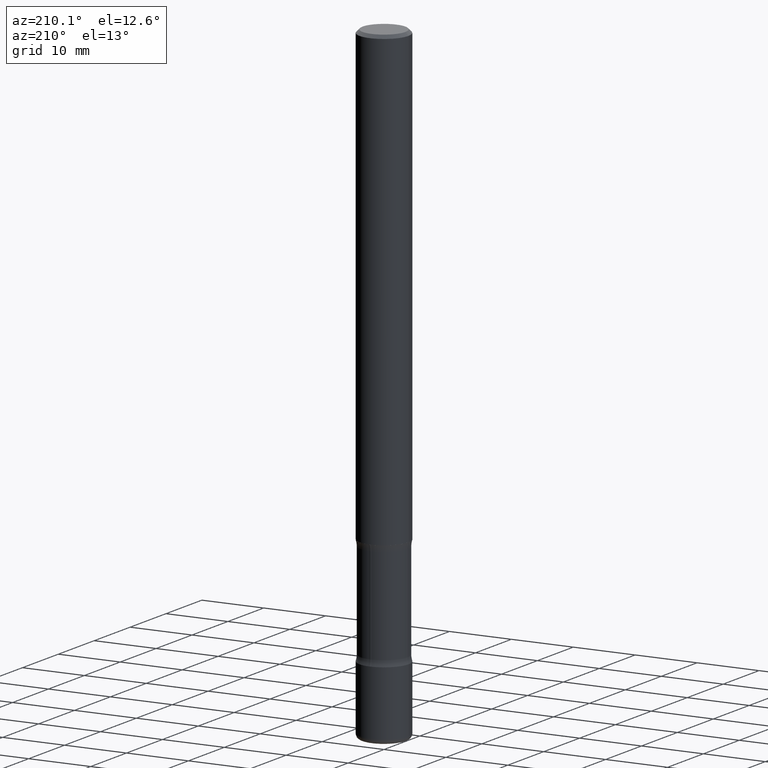
[diagram: clean part render]
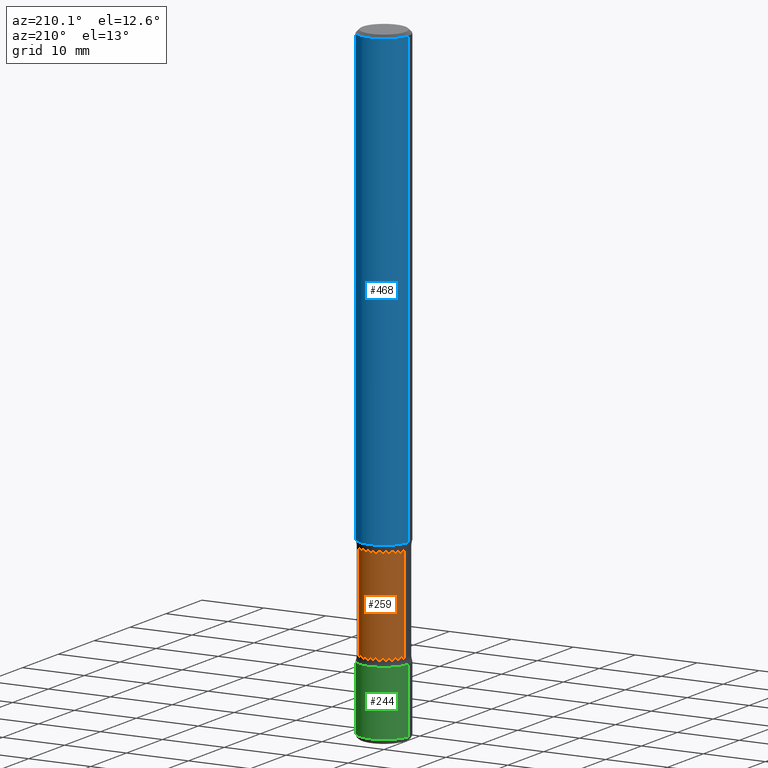
[diagram: same view with three faces highlighted in distinct colors, each labeled with its STEP entity id]
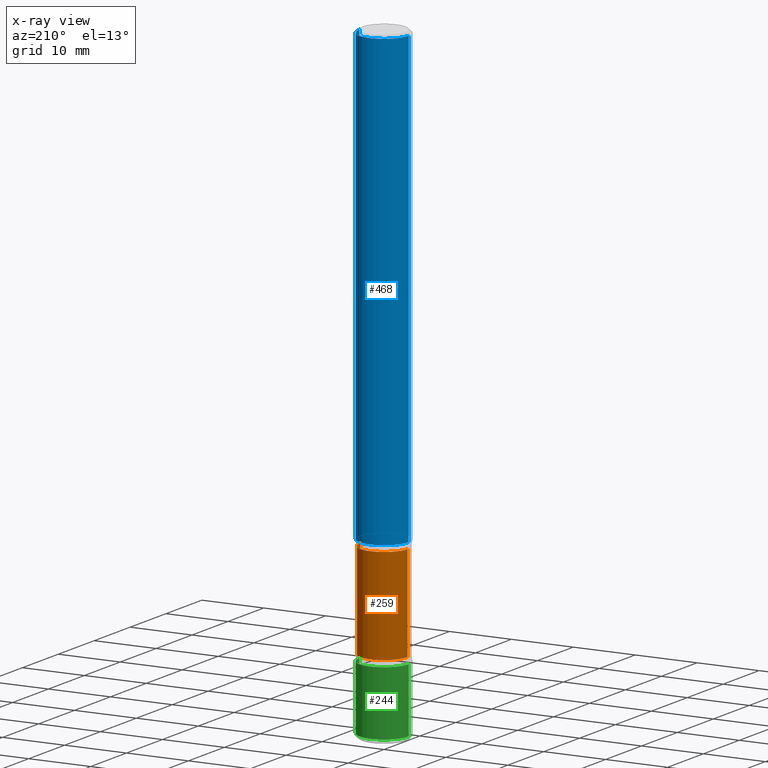
[diagram: x-ray of the same camera — body ghosted, the three highlighted faces saturated]
A machine part, auxiliary view with three faces highlighted in distinct colors.
The next image is the same camera in x-ray (body ghosted, the three faces saturated) — at least one of them is partly hidden behind the body in this view.
Their STEP definitions:

[orange] entity #259 — the highlighted cylindrical surface (edge-blend (fillet) strip) has radius 3.81 mm, axis along (-0, 0, 1).
#2 = VECTOR ( 'NONE', #72, 39.37007874015748143 ) ;
#15 = EDGE_CURVE ( 'NONE', #85, #560, #595, .T. ) ;
#27 = CARTESIAN_POINT ( 'NONE',  ( 7.126172491530842788E-29, -1.017428568650229871E-14, -2.914031237489990378 ) ) ;
#29 = EDGE_LOOP ( 'NONE', ( #352, #201, #189, #82 ) ) ;
#72 = DIRECTION ( 'NONE',  ( -2.445468806185136877E-29, 3.491481338843145188E-15, 1.000000000000000000 ) ) ;
#82 = ORIENTED_EDGE ( 'NONE', *, *, #425, .F. ) ;
#85 = VERTEX_POINT ( 'NONE', #504 ) ;
#136 = VECTOR ( 'NONE', #156, 39.37007874015748143 ) ;
#150 = CARTESIAN_POINT ( 'NONE',  ( 0.1499999999999999667, -1.334956983395339036E-14, -3.523468762510010066 ) ) ;
#156 = DIRECTION ( 'NONE',  ( -2.445468806185136877E-29, 3.491481338843145188E-15, 1.000000000000000000 ) ) ;
#181 = DIRECTION ( 'NONE',  ( 1.000000000000000000, -6.982962677686270655E-15, 0.000000000000000000 ) ) ;
#189 = ORIENTED_EDGE ( 'NONE', *, *, #15, .F. ) ;
#194 = EDGE_CURVE ( 'NONE', #447, #431, #607, .T. ) ;
#201 = ORIENTED_EDGE ( 'NONE', *, *, #796, .T. ) ;
#204 = DIRECTION ( 'NONE',  ( -2.445468806185136597E-29, 3.491481338843145583E-15, 1.000000000000000000 ) ) ;
#207 = DIRECTION ( 'NONE',  ( -2.445468806185136597E-29, 3.491481338843145583E-15, 1.000000000000000000 ) ) ;
#259 = ADVANCED_FACE ( 'NONE', ( #581 ), #467, .T. ) ;
#352 = ORIENTED_EDGE ( 'NONE', *, *, #194, .T. ) ;
#359 = AXIS2_PLACEMENT_3D ( 'NONE', #27, #207, #399 ) ;
#373 = DIRECTION ( 'NONE',  ( -2.445468806185136597E-29, 3.491481338843145583E-15, 1.000000000000000000 ) ) ;
#399 = DIRECTION ( 'NONE',  ( 1.000000000000000000, -6.982962677686272233E-15, 0.000000000000000000 ) ) ;
#425 = EDGE_CURVE ( 'NONE', #447, #85, #466, .T. ) ;
#431 = VERTEX_POINT ( 'NONE', #660 ) ;
#447 = VERTEX_POINT ( 'NONE', #150 ) ;
#466 = LINE ( 'NONE', #770, #136 ) ;
#467 = CYLINDRICAL_SURFACE ( 'NONE', #762, 0.1499999999999999389 ) ;
#504 = CARTESIAN_POINT ( 'NONE',  ( 0.1499999999999999112, -1.122173008815524030E-14, -2.914031237489990378 ) ) ;
#517 = AXIS2_PLACEMENT_3D ( 'NONE', #563, #373, #746 ) ;
#560 = VERTEX_POINT ( 'NONE', #601 ) ;
#563 = CARTESIAN_POINT ( 'NONE',  ( 8.616532948285975175E-29, -1.230212543230045036E-14, -3.523468762510010066 ) ) ;
#581 = FACE_OUTER_BOUND ( 'NONE', #29, .T. ) ;
#595 = CIRCLE ( 'NONE', #359, 0.1499999999999999112 ) ;
#601 = CARTESIAN_POINT ( 'NONE',  ( -0.1499999999999999112, -9.018128703705517816E-15, -2.914031237489990378 ) ) ;
#607 = CIRCLE ( 'NONE', #517, 0.1499999999999999667 ) ;
#660 = CARTESIAN_POINT ( 'NONE',  ( -0.1499999999999999667, -1.128224528683192507E-14, -3.523468762510010066 ) ) ;
#705 = LINE ( 'NONE', #802, #2 ) ;
#746 = DIRECTION ( 'NONE',  ( 1.000000000000000000, -6.982962677686269866E-15, 0.000000000000000000 ) ) ;
#762 = AXIS2_PLACEMENT_3D ( 'NONE', #766, #204, #181 ) ;
#766 = CARTESIAN_POINT ( 'NONE',  ( 7.030722817782267716E-29, -1.003800884917404311E-14, -2.875000000000000000 ) ) ;
#770 = CARTESIAN_POINT ( 'NONE',  ( 0.1499999999999999389, -1.108545325082698469E-14, -2.875000000000000000 ) ) ;
#796 = EDGE_CURVE ( 'NONE', #431, #560, #705, .T. ) ;
#802 = CARTESIAN_POINT ( 'NONE',  ( -0.1499999999999999389, -8.972194745533893459E-15, -2.875000000000000000 ) ) ;

[blue] entity #468 — the highlighted cylindrical surface (edge-blend (fillet) strip) has radius 3.9687 mm, axis along (-0, 0, 1).
#20 = CARTESIAN_POINT ( 'NONE',  ( -0.1562500000000000000, -3.943696213350291140E-15, -2.875000000000000000 ) ) ;
#53 = CARTESIAN_POINT ( 'NONE',  ( -0.1562499999999997780, 1.021258291611614495E-15, -0.02000000000000003511 ) ) ;
#71 = LINE ( 'NONE', #696, #302 ) ;
#80 = DIRECTION ( 'NONE',  ( -2.445468806185136597E-29, 3.491481338843145583E-15, 1.000000000000000000 ) ) ;
#89 = EDGE_CURVE ( 'NONE', #301, #184, #71, .T. ) ;
#121 = FACE_OUTER_BOUND ( 'NONE', #514, .T. ) ;
#122 = CIRCLE ( 'NONE', #621, 0.1562499999999997780 ) ;
#158 = EDGE_CURVE ( 'NONE', #184, #369, #122, .T. ) ;
#169 = CARTESIAN_POINT ( 'NONE',  ( 7.030722817782267716E-29, -1.003800884917404311E-14, -2.875000000000000000 ) ) ;
#184 = VERTEX_POINT ( 'NONE', #247 ) ;
#213 = AXIS2_PLACEMENT_3D ( 'NONE', #169, #676, #558 ) ;
#218 = ORIENTED_EDGE ( 'NONE', *, *, #89, .F. ) ;
#247 = CARTESIAN_POINT ( 'NONE',  ( 0.1562499999999997780, -1.141782438928663133E-15, -0.02000000000000003511 ) ) ;
#293 = CARTESIAN_POINT ( 'NONE',  ( -0.1562499999999998612, 1.110223024625155554E-15, -7.685836078523284153E-30 ) ) ;
#301 = VERTEX_POINT ( 'NONE', #755 ) ;
#302 = VECTOR ( 'NONE', #320, 39.37007874015748143 ) ;
#320 = DIRECTION ( 'NONE',  ( -2.445468806185136877E-29, 3.491481338843145188E-15, 1.000000000000000000 ) ) ;
#361 = CIRCLE ( 'NONE', #213, 0.1562500000000000000 ) ;
#369 = VERTEX_POINT ( 'NONE', #53 ) ;
#394 = VERTEX_POINT ( 'NONE', #20 ) ;
#440 = AXIS2_PLACEMENT_3D ( 'NONE', #525, #700, #446 ) ;
#446 = DIRECTION ( 'NONE',  ( 1.000000000000000000, -6.982962677686266711E-15, 4.876176775795936353E-29 ) ) ;
#468 = ADVANCED_FACE ( 'NONE', ( #121 ), #639, .T. ) ;
#512 = EDGE_CURVE ( 'NONE', #301, #394, #361, .T. ) ;
#514 = EDGE_LOOP ( 'NONE', ( #729, #610, #732, #218 ) ) ;
#525 = CARTESIAN_POINT ( 'NONE',  ( 0.000000000000000000, 0.000000000000000000, 0.000000000000000000 ) ) ;
#528 = CARTESIAN_POINT ( 'NONE',  ( 4.890937612370281041E-31, -6.982962677686302702E-17, -0.02000000000000003511 ) ) ;
#545 = DIRECTION ( 'NONE',  ( -2.445468806185136877E-29, 3.491481338843145188E-15, 1.000000000000000000 ) ) ;
#558 = DIRECTION ( 'NONE',  ( 1.000000000000000000, -6.982962677686262766E-15, 0.000000000000000000 ) ) ;
#610 = ORIENTED_EDGE ( 'NONE', *, *, #632, .T. ) ;
#621 = AXIS2_PLACEMENT_3D ( 'NONE', #528, #80, #743 ) ;
#632 = EDGE_CURVE ( 'NONE', #394, #369, #781, .T. ) ;
#639 = CYLINDRICAL_SURFACE ( 'NONE', #440, 0.1562499999999998612 ) ;
#676 = DIRECTION ( 'NONE',  ( -2.445468806185136597E-29, 3.491481338843145583E-15, 1.000000000000000000 ) ) ;
#696 = CARTESIAN_POINT ( 'NONE',  ( 0.1562499999999998612, -1.091087918388478187E-15, 7.619026212181143371E-30 ) ) ;
#700 = DIRECTION ( 'NONE',  ( -2.445468806185136597E-29, 3.491481338843145583E-15, 1.000000000000000000 ) ) ;
#729 = ORIENTED_EDGE ( 'NONE', *, *, #512, .T. ) ;
#732 = ORIENTED_EDGE ( 'NONE', *, *, #158, .F. ) ;
#743 = DIRECTION ( 'NONE',  ( 1.000000000000000000, -6.982962677686265133E-15, 0.000000000000000000 ) ) ;
#755 = CARTESIAN_POINT ( 'NONE',  ( 0.1562500000000000000, -1.112909676756252307E-14, -2.875000000000000000 ) ) ;
#777 = VECTOR ( 'NONE', #545, 39.37007874015748143 ) ;
#781 = LINE ( 'NONE', #293, #777 ) ;

[green] entity #244 — the highlighted cylindrical surface (edge-blend (fillet) strip) has radius 3.9688 mm, axis along (-0, 0, 1).
#8 = EDGE_CURVE ( 'NONE', #130, #629, #771, .T. ) ;
#43 = CARTESIAN_POINT ( 'NONE',  ( 8.711982622034549126E-29, -1.243840226962870597E-14, -3.562500000000000000 ) ) ;
#60 = CARTESIAN_POINT ( 'NONE',  ( 0.1562500000000001388, -1.495226883359576577E-14, -3.970000000000000195 ) ) ;
#102 = CARTESIAN_POINT ( 'NONE',  ( -0.1562500000000000000, -1.203956856779284013E-14, -3.562500000000000000 ) ) ;
#103 = DIRECTION ( 'NONE',  ( 1.000000000000000000, -6.982962677686262766E-15, 0.000000000000000000 ) ) ;
#104 = CARTESIAN_POINT ( 'NONE',  ( 0.1562500000000000000, -1.352949018801718435E-14, -3.562500000000000000 ) ) ;
#128 = EDGE_CURVE ( 'NONE', #130, #142, #722, .T. ) ;
#130 = VERTEX_POINT ( 'NONE', #60 ) ;
#142 = VERTEX_POINT ( 'NONE', #465 ) ;
#146 = CARTESIAN_POINT ( 'NONE',  ( 0.000000000000000000, 0.000000000000000000, 0.000000000000000000 ) ) ;
#161 = EDGE_CURVE ( 'NONE', #629, #292, #497, .T. ) ;
#162 = AXIS2_PLACEMENT_3D ( 'NONE', #146, #587, #520 ) ;
#164 = LINE ( 'NONE', #662, #441 ) ;
#240 = AXIS2_PLACEMENT_3D ( 'NONE', #709, #260, #381 ) ;
#244 = ADVANCED_FACE ( 'NONE', ( #273 ), #526, .T. ) ;
#250 = ORIENTED_EDGE ( 'NONE', *, *, #8, .F. ) ;
#260 = DIRECTION ( 'NONE',  ( -2.445468806185136597E-29, 3.491481338843145583E-15, 1.000000000000000000 ) ) ;
#273 = FACE_OUTER_BOUND ( 'NONE', #400, .T. ) ;
#284 = CARTESIAN_POINT ( 'NONE',  ( 0.1562500000000000000, -1.091087918388479174E-15, 7.619026212181150377E-30 ) ) ;
#290 = AXIS2_PLACEMENT_3D ( 'NONE', #43, #363, #103 ) ;
#292 = VERTEX_POINT ( 'NONE', #102 ) ;
#363 = DIRECTION ( 'NONE',  ( -2.445468806185136597E-29, 3.491481338843145583E-15, 1.000000000000000000 ) ) ;
#381 = DIRECTION ( 'NONE',  ( 1.000000000000000000, -6.982962677686262766E-15, 0.000000000000000000 ) ) ;
#400 = EDGE_LOOP ( 'NONE', ( #505, #748, #472, #250 ) ) ;
#441 = VECTOR ( 'NONE', #550, 39.37007874015748143 ) ;
#465 = CARTESIAN_POINT ( 'NONE',  ( -0.1562500000000001388, -1.275095789058212927E-14, -3.970000000000000195 ) ) ;
#472 = ORIENTED_EDGE ( 'NONE', *, *, #161, .F. ) ;
#497 = CIRCLE ( 'NONE', #290, 0.1562500000000000000 ) ;
#505 = ORIENTED_EDGE ( 'NONE', *, *, #128, .T. ) ;
#520 = DIRECTION ( 'NONE',  ( 1.000000000000000000, -6.982962677686266711E-15, 4.876176775795936353E-29 ) ) ;
#526 = CYLINDRICAL_SURFACE ( 'NONE', #162, 0.1562500000000000000 ) ;
#550 = DIRECTION ( 'NONE',  ( -2.445468806185136877E-29, 3.491481338843145188E-15, 1.000000000000000000 ) ) ;
#587 = DIRECTION ( 'NONE',  ( -2.445468806185136597E-29, 3.491481338843145583E-15, 1.000000000000000000 ) ) ;
#629 = VERTEX_POINT ( 'NONE', #104 ) ;
#646 = VECTOR ( 'NONE', #783, 39.37007874015748143 ) ;
#662 = CARTESIAN_POINT ( 'NONE',  ( -0.1562500000000000000, 1.110223024625156540E-15, -7.685836078523291160E-30 ) ) ;
#695 = EDGE_CURVE ( 'NONE', #142, #292, #164, .T. ) ;
#709 = CARTESIAN_POINT ( 'NONE',  ( 9.708511160554992872E-29, -1.386118091520728738E-14, -3.970000000000000195 ) ) ;
#722 = CIRCLE ( 'NONE', #240, 0.1562500000000000000 ) ;
#748 = ORIENTED_EDGE ( 'NONE', *, *, #695, .T. ) ;
#771 = LINE ( 'NONE', #284, #646 ) ;
#783 = DIRECTION ( 'NONE',  ( -2.445468806185136877E-29, 3.491481338843145188E-15, 1.000000000000000000 ) ) ;